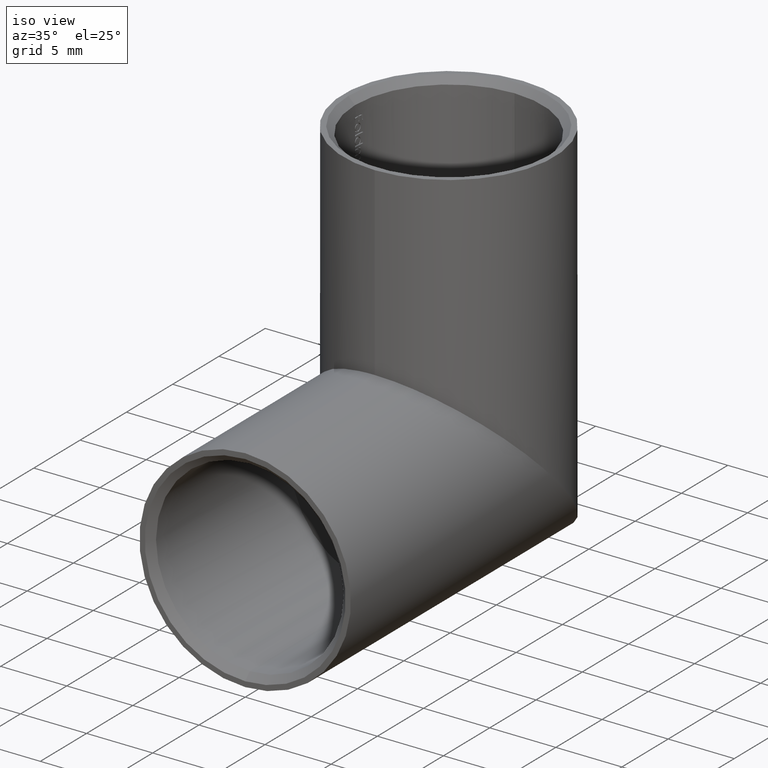
[diagram: clean part render]
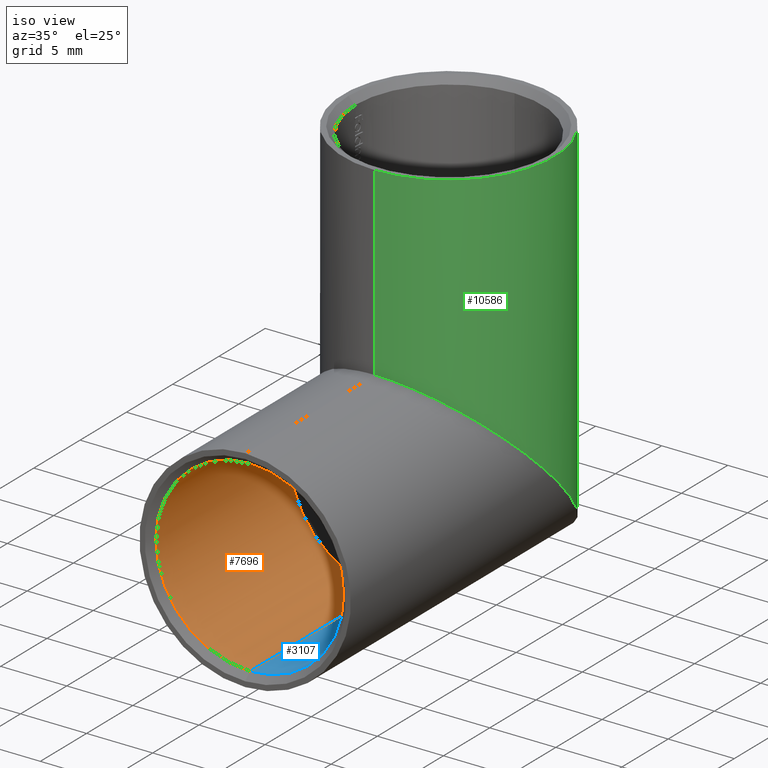
[diagram: same view with three faces highlighted in distinct colors, each labeled with its STEP entity id]
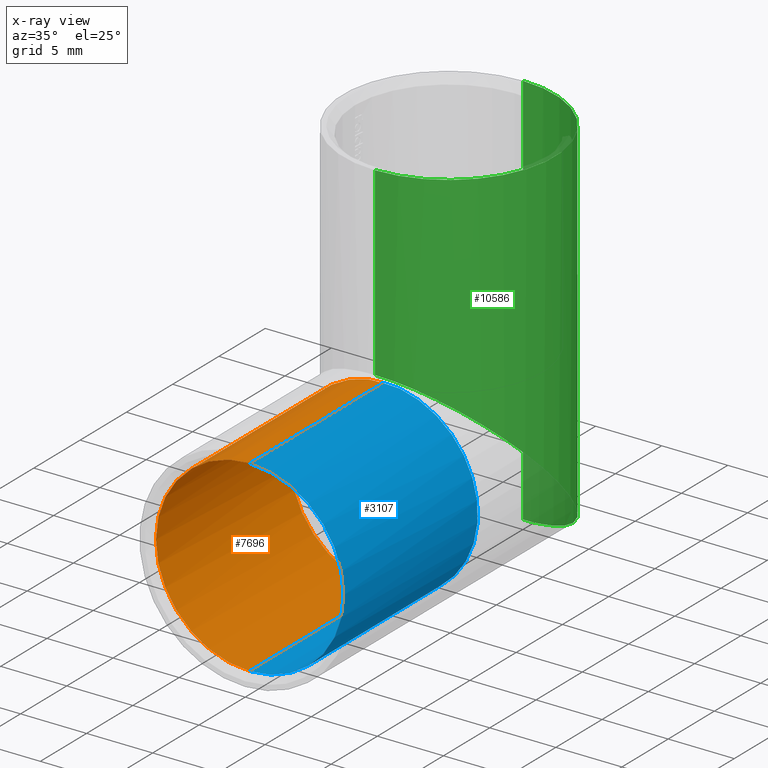
[diagram: x-ray of the same camera — body ghosted, the three highlighted faces saturated]
A machine part, iso view with three faces highlighted in distinct colors.
The next image is the same camera in x-ray (body ghosted, the three faces saturated) — at least one of them is partly hidden behind the body in this view.
Their STEP definitions:

[orange] entity #7696 — the highlighted cylindrical surface (partial cylindrical patch) has radius 7.1 mm, axis along (-0, -1, -0).
#369 = CARTESIAN_POINT ( 'NONE',  ( -0.7948931556050726766, 14.93341190360426651, 7.066588096395721941 ) ) ;
#705 = LINE ( 'NONE', #12334, #7277 ) ;
#948 = DIRECTION ( 'NONE',  ( 0.000000000000000000, -1.000000000000000000, 0.000000000000000000 ) ) ;
#1038 = DIRECTION ( 'NONE',  ( -0.000000000000000000, -1.000000000000000000, -0.000000000000000000 ) ) ;
#1145 = VERTEX_POINT ( 'NONE', #11515 ) ;
#1530 = DIRECTION ( 'NONE',  ( 0.000000000000000000, 0.000000000000000000, -1.000000000000000000 ) ) ;
#2354 = EDGE_LOOP ( 'NONE', ( #8432, #6691, #8173, #4435, #8156 ) ) ;
#2540 = CARTESIAN_POINT ( 'NONE',  ( 0.000000000000000000, 15.00000000000000000, 0.000000000000000000 ) ) ;
#2932 = CARTESIAN_POINT ( 'NONE',  ( 8.694992273946207746E-16, 0.5000000000000004441, 7.099999999999999645 ) ) ;
#3168 = EDGE_CURVE ( 'NONE', #1145, #8603, #12150, .T. ) ;
#3701 =( BOUNDED_CURVE ( )  B_SPLINE_CURVE ( 3, ( #5181, #10934, #369, #5305 ),
 .UNSPECIFIED., .F., .F. ) 
 B_SPLINE_CURVE_WITH_KNOTS ( ( 4, 4 ),
 ( 0.000000000000000000, 0.1680338894849751630 ),
 .UNSPECIFIED. ) 
 CURVE ( )  GEOMETRIC_REPRESENTATION_ITEM ( )  RATIONAL_B_SPLINE_CURVE ( ( 1.000000000000000000, 0.9976484347653343798, 0.9976484347653343798, 1.000000000000000000 ) ) 
 REPRESENTATION_ITEM ( '' )  );
#4435 = ORIENTED_EDGE ( 'NONE', *, *, #10010, .F. ) ;
#4780 = CARTESIAN_POINT ( 'NONE',  ( 8.694992273946207746E-16, 15.00000000000000000, 7.099999999999999645 ) ) ;
#4991 = AXIS2_PLACEMENT_3D ( 'NONE', #8741, #11552, #4999 ) ;
#4999 = DIRECTION ( 'NONE',  ( 0.000000000000000000, 0.000000000000000000, -1.000000000000000000 ) ) ;
#5181 = CARTESIAN_POINT ( 'NONE',  ( 0.000000000000000000, 14.89999999999998970, 7.100000000000000533 ) ) ;
#5228 = CYLINDRICAL_SURFACE ( 'NONE', #10985, 7.099999999999999645 ) ;
#5305 = CARTESIAN_POINT ( 'NONE',  ( -1.187434208703863847, 15.00000000000000000, 6.999999999999987566 ) ) ;
#5366 = VERTEX_POINT ( 'NONE', #5728 ) ;
#5582 = VECTOR ( 'NONE', #6832, 1000.000000000000000 ) ;
#5728 = CARTESIAN_POINT ( 'NONE',  ( 0.000000000000000000, 0.5000000000000004441, -7.099999999999999645 ) ) ;
#6366 = VERTEX_POINT ( 'NONE', #9106 ) ;
#6672 = CARTESIAN_POINT ( 'NONE',  ( 0.000000000000000000, 0.5000000000000004441, 0.000000000000000000 ) ) ;
#6691 = ORIENTED_EDGE ( 'NONE', *, *, #3168, .T. ) ;
#6832 = DIRECTION ( 'NONE',  ( -0.000000000000000000, -1.000000000000000000, -0.000000000000000000 ) ) ;
#7136 = VERTEX_POINT ( 'NONE', #10920 ) ;
#7154 = CIRCLE ( 'NONE', #12103, 7.099999999999999645 ) ;
#7277 = VECTOR ( 'NONE', #1038, 1000.000000000000000 ) ;
#7693 = DIRECTION ( 'NONE',  ( 0.000000000000000000, 0.000000000000000000, 1.000000000000000000 ) ) ;
#7696 = ADVANCED_FACE ( 'NONE', ( #7901 ), #5228, .F. ) ;
#7901 = FACE_OUTER_BOUND ( 'NONE', #2354, .T. ) ;
#8156 = ORIENTED_EDGE ( 'NONE', *, *, #9714, .F. ) ;
#8173 = ORIENTED_EDGE ( 'NONE', *, *, #8322, .T. ) ;
#8322 = EDGE_CURVE ( 'NONE', #8603, #5366, #7154, .T. ) ;
#8432 = ORIENTED_EDGE ( 'NONE', *, *, #10506, .F. ) ;
#8603 = VERTEX_POINT ( 'NONE', #2932 ) ;
#8741 = CARTESIAN_POINT ( 'NONE',  ( 0.000000000000000000, 15.00000000000000000, 0.000000000000000000 ) ) ;
#9106 = CARTESIAN_POINT ( 'NONE',  ( -1.187434208703863847, 15.00000000000000000, 6.999999999999987566 ) ) ;
#9714 = EDGE_CURVE ( 'NONE', #6366, #7136, #10422, .T. ) ;
#10010 = EDGE_CURVE ( 'NONE', #7136, #5366, #705, .T. ) ;
#10206 = DIRECTION ( 'NONE',  ( -0.000000000000000000, -1.000000000000000000, -0.000000000000000000 ) ) ;
#10422 = CIRCLE ( 'NONE', #4991, 7.099999999999999645 ) ;
#10506 = EDGE_CURVE ( 'NONE', #1145, #6366, #3701, .T. ) ;
#10920 = CARTESIAN_POINT ( 'NONE',  ( 0.000000000000000000, 15.00000000000000000, -7.099999999999999645 ) ) ;
#10934 = CARTESIAN_POINT ( 'NONE',  ( -0.3981487824287743282, 14.89999999999998970, 7.099999999999998757 ) ) ;
#10985 = AXIS2_PLACEMENT_3D ( 'NONE', #2540, #10206, #1530 ) ;
#11515 = CARTESIAN_POINT ( 'NONE',  ( 0.000000000000000000, 14.89999999999998970, 7.100000000000000533 ) ) ;
#11552 = DIRECTION ( 'NONE',  ( 0.000000000000000000, -1.000000000000000000, 0.000000000000000000 ) ) ;
#12103 = AXIS2_PLACEMENT_3D ( 'NONE', #6672, #948, #7693 ) ;
#12150 = LINE ( 'NONE', #4780, #5582 ) ;
#12334 = CARTESIAN_POINT ( 'NONE',  ( 0.000000000000000000, 15.00000000000000000, -7.099999999999999645 ) ) ;

[blue] entity #3107 — the highlighted cylindrical surface (partial cylindrical patch) has radius 7.1 mm, axis along (-0, -1, -0).
#274 = CIRCLE ( 'NONE', #4834, 7.099999999999999645 ) ;
#475 = CARTESIAN_POINT ( 'NONE',  ( 0.7948931556050686797, 14.93341190360426651, 7.066588096395721941 ) ) ;
#705 = LINE ( 'NONE', #12334, #7277 ) ;
#1038 = DIRECTION ( 'NONE',  ( -0.000000000000000000, -1.000000000000000000, -0.000000000000000000 ) ) ;
#1145 = VERTEX_POINT ( 'NONE', #11515 ) ;
#2337 = FACE_OUTER_BOUND ( 'NONE', #2402, .T. ) ;
#2396 = CARTESIAN_POINT ( 'NONE',  ( 0.000000000000000000, 0.5000000000000004441, 0.000000000000000000 ) ) ;
#2402 = EDGE_LOOP ( 'NONE', ( #3727, #7427, #7425, #7305, #8874 ) ) ;
#2452 = DIRECTION ( 'NONE',  ( 0.000000000000000000, 0.000000000000000000, -1.000000000000000000 ) ) ;
#2932 = CARTESIAN_POINT ( 'NONE',  ( 8.694992273946207746E-16, 0.5000000000000004441, 7.099999999999999645 ) ) ;
#3107 = ADVANCED_FACE ( 'NONE', ( #2337 ), #10203, .F. ) ;
#3142 = DIRECTION ( 'NONE',  ( 0.000000000000000000, -1.000000000000000000, 0.000000000000000000 ) ) ;
#3168 = EDGE_CURVE ( 'NONE', #1145, #8603, #12150, .T. ) ;
#3459 = CARTESIAN_POINT ( 'NONE',  ( 0.000000000000000000, 15.00000000000000000, 0.000000000000000000 ) ) ;
#3547 = VERTEX_POINT ( 'NONE', #11223 ) ;
#3724 = EDGE_CURVE ( 'NONE', #3547, #1145, #6275, .T. ) ;
#3727 = ORIENTED_EDGE ( 'NONE', *, *, #3168, .F. ) ;
#3995 = DIRECTION ( 'NONE',  ( 0.000000000000000000, 0.000000000000000000, -1.000000000000000000 ) ) ;
#4291 = DIRECTION ( 'NONE',  ( 0.000000000000000000, 0.000000000000000000, 1.000000000000000000 ) ) ;
#4780 = CARTESIAN_POINT ( 'NONE',  ( 8.694992273946207746E-16, 15.00000000000000000, 7.099999999999999645 ) ) ;
#4834 = AXIS2_PLACEMENT_3D ( 'NONE', #11567, #3142, #3995 ) ;
#5255 = DIRECTION ( 'NONE',  ( -0.000000000000000000, -1.000000000000000000, -0.000000000000000000 ) ) ;
#5366 = VERTEX_POINT ( 'NONE', #5728 ) ;
#5582 = VECTOR ( 'NONE', #6832, 1000.000000000000000 ) ;
#5728 = CARTESIAN_POINT ( 'NONE',  ( 0.000000000000000000, 0.5000000000000004441, -7.099999999999999645 ) ) ;
#6241 = AXIS2_PLACEMENT_3D ( 'NONE', #3459, #5255, #2452 ) ;
#6275 =( BOUNDED_CURVE ( )  B_SPLINE_CURVE ( 3, ( #8166, #475, #8209, #11082 ),
 .UNSPECIFIED., .F., .F. ) 
 B_SPLINE_CURVE_WITH_KNOTS ( ( 4, 4 ),
 ( 6.115151417694612235, 6.283185307179586232 ),
 .UNSPECIFIED. ) 
 CURVE ( )  GEOMETRIC_REPRESENTATION_ITEM ( )  RATIONAL_B_SPLINE_CURVE ( ( 1.000000000000000000, 0.9976484347653343798, 0.9976484347653343798, 1.000000000000000000 ) ) 
 REPRESENTATION_ITEM ( '' )  );
#6832 = DIRECTION ( 'NONE',  ( -0.000000000000000000, -1.000000000000000000, -0.000000000000000000 ) ) ;
#7136 = VERTEX_POINT ( 'NONE', #10920 ) ;
#7190 = DIRECTION ( 'NONE',  ( 0.000000000000000000, -1.000000000000000000, 0.000000000000000000 ) ) ;
#7277 = VECTOR ( 'NONE', #1038, 1000.000000000000000 ) ;
#7305 = ORIENTED_EDGE ( 'NONE', *, *, #10010, .T. ) ;
#7312 = CIRCLE ( 'NONE', #9768, 7.099999999999999645 ) ;
#7425 = ORIENTED_EDGE ( 'NONE', *, *, #8735, .F. ) ;
#7427 = ORIENTED_EDGE ( 'NONE', *, *, #3724, .F. ) ;
#8166 = CARTESIAN_POINT ( 'NONE',  ( 1.187434208703855187, 15.00000000000000000, 6.999999999999987566 ) ) ;
#8209 = CARTESIAN_POINT ( 'NONE',  ( 0.3981487824287715527, 14.89999999999998970, 7.099999999999998757 ) ) ;
#8412 = EDGE_CURVE ( 'NONE', #5366, #8603, #7312, .T. ) ;
#8603 = VERTEX_POINT ( 'NONE', #2932 ) ;
#8735 = EDGE_CURVE ( 'NONE', #7136, #3547, #274, .T. ) ;
#8874 = ORIENTED_EDGE ( 'NONE', *, *, #8412, .T. ) ;
#9768 = AXIS2_PLACEMENT_3D ( 'NONE', #2396, #7190, #4291 ) ;
#10010 = EDGE_CURVE ( 'NONE', #7136, #5366, #705, .T. ) ;
#10203 = CYLINDRICAL_SURFACE ( 'NONE', #6241, 7.099999999999999645 ) ;
#10920 = CARTESIAN_POINT ( 'NONE',  ( 0.000000000000000000, 15.00000000000000000, -7.099999999999999645 ) ) ;
#11082 = CARTESIAN_POINT ( 'NONE',  ( 0.000000000000000000, 14.89999999999998970, 7.100000000000000533 ) ) ;
#11223 = CARTESIAN_POINT ( 'NONE',  ( 1.187434208703855187, 15.00000000000000000, 6.999999999999987566 ) ) ;
#11515 = CARTESIAN_POINT ( 'NONE',  ( 0.000000000000000000, 14.89999999999998970, 7.100000000000000533 ) ) ;
#11567 = CARTESIAN_POINT ( 'NONE',  ( 0.000000000000000000, 15.00000000000000000, 0.000000000000000000 ) ) ;
#12150 = LINE ( 'NONE', #4780, #5582 ) ;
#12334 = CARTESIAN_POINT ( 'NONE',  ( 0.000000000000000000, 15.00000000000000000, -7.099999999999999645 ) ) ;

[green] entity #10586 — the highlighted cylindrical surface (partial cylindrical patch) has radius 8 mm, axis along (0, -0, 1).
#48 = CARTESIAN_POINT ( 'NONE',  ( 0.000000000000000000, 13.99999999999999645, 8.000000000000001776 ) ) ;
#159 = LINE ( 'NONE', #2940, #3479 ) ;
#306 = CIRCLE ( 'NONE', #3884, 8.000000000000000000 ) ;
#519 =( BOUNDED_CURVE ( )  B_SPLINE_CURVE ( 3, ( #1294, #1253, #7946, #2279 ),
 .UNSPECIFIED., .F., .F. ) 
 B_SPLINE_CURVE_WITH_KNOTS ( ( 4, 4 ),
 ( 0.000000000000000000, 3.141592653589793116 ),
 .UNSPECIFIED. ) 
 CURVE ( )  GEOMETRIC_REPRESENTATION_ITEM ( )  RATIONAL_B_SPLINE_CURVE ( ( 1.000000000000000000, 0.3333333333333333703, 0.3333333333333333703, 1.000000000000000000 ) ) 
 REPRESENTATION_ITEM ( '' )  );
#756 = DIRECTION ( 'NONE',  ( 0.000000000000000000, -1.000000000000000000, -4.336808689942017736E-16 ) ) ;
#1253 = CARTESIAN_POINT ( 'NONE',  ( 15.99999999999999822, 13.99999999999999467, 8.000000000000001776 ) ) ;
#1294 = CARTESIAN_POINT ( 'NONE',  ( 0.000000000000000000, 13.99999999999999645, 8.000000000000001776 ) ) ;
#2114 = VERTEX_POINT ( 'NONE', #4802 ) ;
#2279 = CARTESIAN_POINT ( 'NONE',  ( 9.797174393178825657E-16, 30.00000000000000000, -8.000000000000001776 ) ) ;
#2374 = EDGE_CURVE ( 'NONE', #8614, #2114, #7389, .T. ) ;
#2605 = ORIENTED_EDGE ( 'NONE', *, *, #6866, .F. ) ;
#2670 = DIRECTION ( 'NONE',  ( -0.000000000000000000, 3.154042683594195614E-16, -1.000000000000000000 ) ) ;
#2719 = EDGE_LOOP ( 'NONE', ( #9586, #8666, #5104, #2605 ) ) ;
#2754 = VERTEX_POINT ( 'NONE', #48 ) ;
#2940 = CARTESIAN_POINT ( 'NONE',  ( 0.000000000000000000, 13.99999999999999822, -2.523234146875356491E-15 ) ) ;
#2987 = FACE_OUTER_BOUND ( 'NONE', #2719, .T. ) ;
#3466 = DIRECTION ( 'NONE',  ( 0.000000000000000000, -3.154042683594195614E-16, 1.000000000000000000 ) ) ;
#3479 = VECTOR ( 'NONE', #8607, 1000.000000000000000 ) ;
#3573 = CYLINDRICAL_SURFACE ( 'NONE', #5323, 8.000000000000000000 ) ;
#3874 = CARTESIAN_POINT ( 'NONE',  ( 9.797174393178825657E-16, 30.00000000000000000, -8.000000000000001776 ) ) ;
#3884 = AXIS2_PLACEMENT_3D ( 'NONE', #4690, #2670, #756 ) ;
#4690 = CARTESIAN_POINT ( 'NONE',  ( 0.000000000000000000, 21.99999999999999289, 21.99999999999999645 ) ) ;
#4721 = EDGE_CURVE ( 'NONE', #2754, #8614, #519, .T. ) ;
#4802 = CARTESIAN_POINT ( 'NONE',  ( 9.797174393178825657E-16, 29.99999999999999289, 22.00000000000000000 ) ) ;
#5104 = ORIENTED_EDGE ( 'NONE', *, *, #6406, .T. ) ;
#5126 = CARTESIAN_POINT ( 'NONE',  ( 0.000000000000000000, 13.99999999999999112, 21.99999999999999289 ) ) ;
#5323 = AXIS2_PLACEMENT_3D ( 'NONE', #8180, #3466, #9159 ) ;
#6223 = VERTEX_POINT ( 'NONE', #5126 ) ;
#6406 = EDGE_CURVE ( 'NONE', #2114, #6223, #306, .T. ) ;
#6801 = VECTOR ( 'NONE', #7648, 1000.000000000000000 ) ;
#6866 = EDGE_CURVE ( 'NONE', #2754, #6223, #159, .T. ) ;
#7389 = LINE ( 'NONE', #10618, #6801 ) ;
#7648 = DIRECTION ( 'NONE',  ( 0.000000000000000000, -3.154042683594195614E-16, 1.000000000000000000 ) ) ;
#7946 = CARTESIAN_POINT ( 'NONE',  ( 15.99999999999999822, 30.00000000000000355, -8.000000000000000000 ) ) ;
#8180 = CARTESIAN_POINT ( 'NONE',  ( 0.000000000000000000, 22.00000000000000000, 0.000000000000000000 ) ) ;
#8607 = DIRECTION ( 'NONE',  ( 0.000000000000000000, -3.154042683594195614E-16, 1.000000000000000000 ) ) ;
#8614 = VERTEX_POINT ( 'NONE', #3874 ) ;
#8666 = ORIENTED_EDGE ( 'NONE', *, *, #2374, .T. ) ;
#9159 = DIRECTION ( 'NONE',  ( 0.000000000000000000, -1.000000000000000000, -3.154042683594195614E-16 ) ) ;
#9586 = ORIENTED_EDGE ( 'NONE', *, *, #4721, .T. ) ;
#10586 = ADVANCED_FACE ( 'NONE', ( #2987 ), #3573, .T. ) ;
#10618 = CARTESIAN_POINT ( 'NONE',  ( 9.797174393178825657E-16, 30.00000000000000000, 2.523234146875356491E-15 ) ) ;